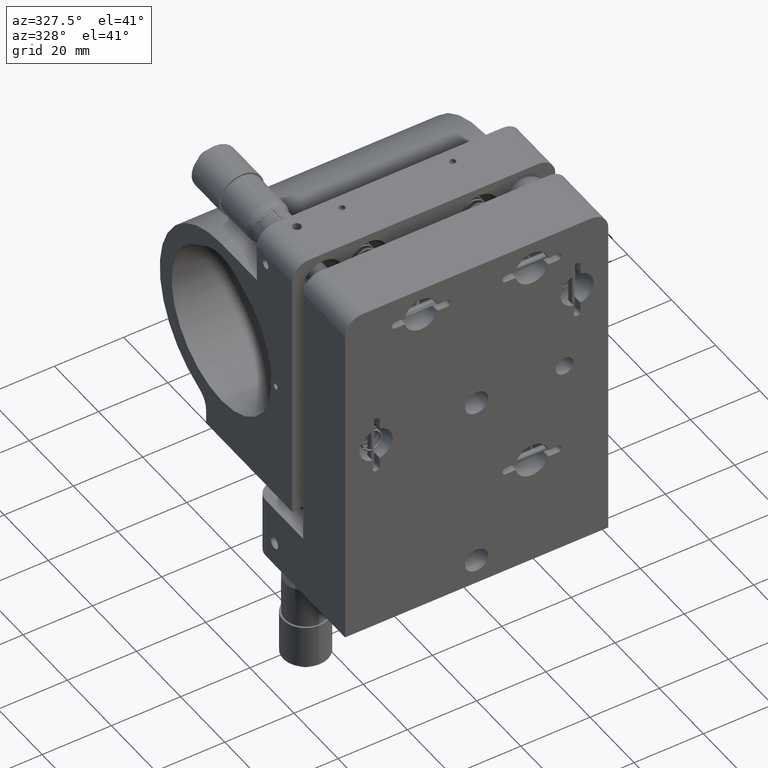
[diagram: clean part render]
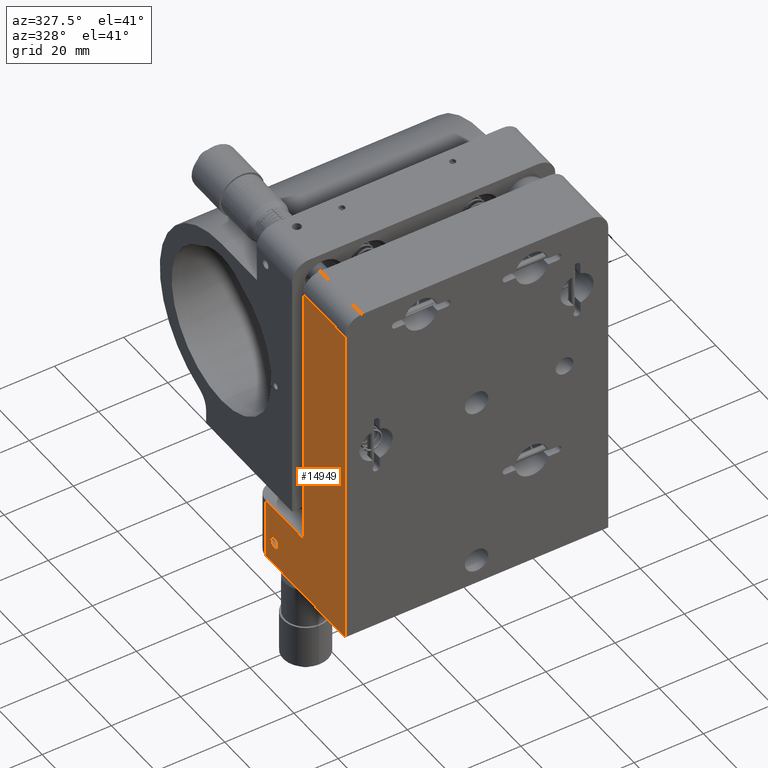
[diagram: same view with one face highlighted and labeled with its STEP entity id]
A machine part, auxiliary view. The second image highlights one B-rep face of the part: STEP entity #14949.
In plain terms, the highlighted planar face has unit normal (1, 0, -0).
Its self-contained STEP definition (entity closure, byte-faithful):
#124 = AXIS2_PLACEMENT_3D ( 'NONE', #10535, #73574, #38282 ) ;
#199 = VECTOR ( 'NONE', #81697, 1000.000000000000000 ) ;
#1352 = CARTESIAN_POINT ( 'NONE',  ( -38.00000000000000000, 36.00000000000000000, -40.10000000000000100 ) ) ;
#3157 = DIRECTION ( 'NONE',  ( -0.0000000000000000000, 1.000000000000000000, -0.0000000000000000000 ) ) ;
#3262 = CIRCLE ( 'NONE', #89331, 1.649999999999991700 ) ;
#5320 = CARTESIAN_POINT ( 'NONE',  ( -38.00000000000000000, 40.99999999999999300, 39.00000000000000000 ) ) ;
#5991 = VERTEX_POINT ( 'NONE', #40137 ) ;
#7043 = EDGE_CURVE ( 'NONE', #35010, #21566, #52518, .T. ) ;
#7230 = LINE ( 'NONE', #63806, #21452 ) ;
#8222 = CARTESIAN_POINT ( 'NONE',  ( -38.00000000000000000, 40.99999999999999300, -40.10000000000000100 ) ) ;
#8328 = DIRECTION ( 'NONE',  ( -0.0000000000000000000, 1.000000000000000000, -1.692413147294446000E-016 ) ) ;
#8818 = DIRECTION ( 'NONE',  ( 0.0000000000000000000, -1.000000000000000000, 0.0000000000000000000 ) ) ;
#10535 = CARTESIAN_POINT ( 'NONE',  ( -38.00000000000000000, 40.99999999999999300, -40.10000000000000100 ) ) ;
#11895 = VERTEX_POINT ( 'NONE', #21925 ) ;
#12456 = VECTOR ( 'NONE', #54224, 1000.000000000000000 ) ;
#13723 = CARTESIAN_POINT ( 'NONE',  ( -38.00000000000000000, 7.163947169860903800E-015, 39.00000000000000000 ) ) ;
#14661 = LINE ( 'NONE', #5320, #31032 ) ;
#14949 = ADVANCED_FACE ( 'NONE', ( #59425, #22358 ), #44999, .F. ) ;
#15283 = DIRECTION ( 'NONE',  ( -1.000000000000000000, -0.0000000000000000000, -0.0000000000000000000 ) ) ;
#16419 = EDGE_CURVE ( 'NONE', #64148, #21566, #14661, .T. ) ;
#17777 = CARTESIAN_POINT ( 'NONE',  ( -38.00000000000000000, 18.99999999999999600, -40.10000000000000100 ) ) ;
#18264 = CARTESIAN_POINT ( 'NONE',  ( -38.00000000000000000, 36.00000000000000000, -40.10000000000000100 ) ) ;
#18405 = EDGE_CURVE ( 'NONE', #60533, #52448, #73355, .T. ) ;
#21452 = VECTOR ( 'NONE', #8328, 1000.000000000000000 ) ;
#21566 = VERTEX_POINT ( 'NONE', #84063 ) ;
#21925 = CARTESIAN_POINT ( 'NONE',  ( -38.00000000000000000, -1.065407527825468400E-014, -58.00000000000000000 ) ) ;
#22358 = FACE_OUTER_BOUND ( 'NONE', #26036, .T. ) ;
#24167 = ORIENTED_EDGE ( 'NONE', *, *, #36052, .F. ) ;
#25125 = ORIENTED_EDGE ( 'NONE', *, *, #29506, .F. ) ;
#26036 = EDGE_LOOP ( 'NONE', ( #29857, #31787, #24167, #51646, #56248, #86816 ) ) ;
#29506 = EDGE_CURVE ( 'NONE', #52448, #60533, #3262, .T. ) ;
#29644 = CARTESIAN_POINT ( 'NONE',  ( -38.00000000000000000, 32.00000000000000700, -51.00000000000000700 ) ) ;
#29857 = ORIENTED_EDGE ( 'NONE', *, *, #81426, .F. ) ;
#31032 = VECTOR ( 'NONE', #3157, 1000.000000000000000 ) ;
#31787 = ORIENTED_EDGE ( 'NONE', *, *, #63513, .T. ) ;
#33025 = AXIS2_PLACEMENT_3D ( 'NONE', #29644, #15283, #50322 ) ;
#34557 = DIRECTION ( 'NONE',  ( -1.000000000000000000, -0.0000000000000000000, -0.0000000000000000000 ) ) ;
#34897 = EDGE_LOOP ( 'NONE', ( #78129, #25125 ) ) ;
#35010 = VERTEX_POINT ( 'NONE', #17777 ) ;
#36052 = EDGE_CURVE ( 'NONE', #11895, #5991, #7230, .T. ) ;
#38282 = DIRECTION ( 'NONE',  ( -0.0000000000000000000, 0.0000000000000000000, -1.000000000000000000 ) ) ;
#40137 = CARTESIAN_POINT ( 'NONE',  ( -38.00000000000000000, 36.00000000000000000, -58.00000000000000700 ) ) ;
#44999 = PLANE ( 'NONE',  #124 ) ;
#50322 = DIRECTION ( 'NONE',  ( 0.0000000000000000000, 0.0000000000000000000, 1.000000000000000000 ) ) ;
#51222 = DIRECTION ( 'NONE',  ( -0.0000000000000000000, -1.836909530733565600E-016, -1.000000000000000000 ) ) ;
#51646 = ORIENTED_EDGE ( 'NONE', *, *, #54863, .F. ) ;
#52448 = VERTEX_POINT ( 'NONE', #57752 ) ;
#52518 = LINE ( 'NONE', #88450, #199 ) ;
#54224 = DIRECTION ( 'NONE',  ( -0.0000000000000000000, -0.0000000000000000000, -1.000000000000000000 ) ) ;
#54863 = EDGE_CURVE ( 'NONE', #64148, #11895, #70676, .T. ) ;
#54996 = CARTESIAN_POINT ( 'NONE',  ( -38.00000000000000000, 32.00000000000000700, -51.00000000000000700 ) ) ;
#56248 = ORIENTED_EDGE ( 'NONE', *, *, #16419, .T. ) ;
#56492 = VECTOR ( 'NONE', #8818, 1000.000000000000000 ) ;
#57632 = CARTESIAN_POINT ( 'NONE',  ( -38.00000000000000000, -1.065407527825468400E-014, -58.00000000000000000 ) ) ;
#57752 = CARTESIAN_POINT ( 'NONE',  ( -38.00000000000000000, 32.00000000000000700, -52.64999999999999900 ) ) ;
#58068 = VERTEX_POINT ( 'NONE', #1352 ) ;
#59425 = FACE_BOUND ( 'NONE', #34897, .T. ) ;
#59984 = CARTESIAN_POINT ( 'NONE',  ( -38.00000000000000000, 32.00000000000000700, -49.35000000000000900 ) ) ;
#60533 = VERTEX_POINT ( 'NONE', #59984 ) ;
#62271 = DIRECTION ( 'NONE',  ( 0.0000000000000000000, 0.0000000000000000000, 1.000000000000000000 ) ) ;
#63513 = EDGE_CURVE ( 'NONE', #58068, #5991, #89861, .T. ) ;
#63806 = CARTESIAN_POINT ( 'NONE',  ( -38.00000000000000000, 40.99999999999999300, -58.00000000000000700 ) ) ;
#64148 = VERTEX_POINT ( 'NONE', #13723 ) ;
#68446 = LINE ( 'NONE', #8222, #56492 ) ;
#70676 = LINE ( 'NONE', #57632, #88202 ) ;
#73355 = CIRCLE ( 'NONE', #33025, 1.649999999999991700 ) ;
#73574 = DIRECTION ( 'NONE',  ( 1.000000000000000000, 0.0000000000000000000, -0.0000000000000000000 ) ) ;
#78129 = ORIENTED_EDGE ( 'NONE', *, *, #18405, .F. ) ;
#81426 = EDGE_CURVE ( 'NONE', #58068, #35010, #68446, .T. ) ;
#81697 = DIRECTION ( 'NONE',  ( 0.0000000000000000000, 1.237614846119006200E-016, 1.000000000000000000 ) ) ;
#84063 = CARTESIAN_POINT ( 'NONE',  ( -38.00000000000000000, 19.00000000000000700, 38.99999999999997200 ) ) ;
#86816 = ORIENTED_EDGE ( 'NONE', *, *, #7043, .F. ) ;
#88202 = VECTOR ( 'NONE', #51222, 1000.000000000000000 ) ;
#88450 = CARTESIAN_POINT ( 'NONE',  ( -38.00000000000000000, 18.99999999999999600, -40.10000000000000100 ) ) ;
#89331 = AXIS2_PLACEMENT_3D ( 'NONE', #54996, #34557, #62271 ) ;
#89861 = LINE ( 'NONE', #18264, #12456 ) ;